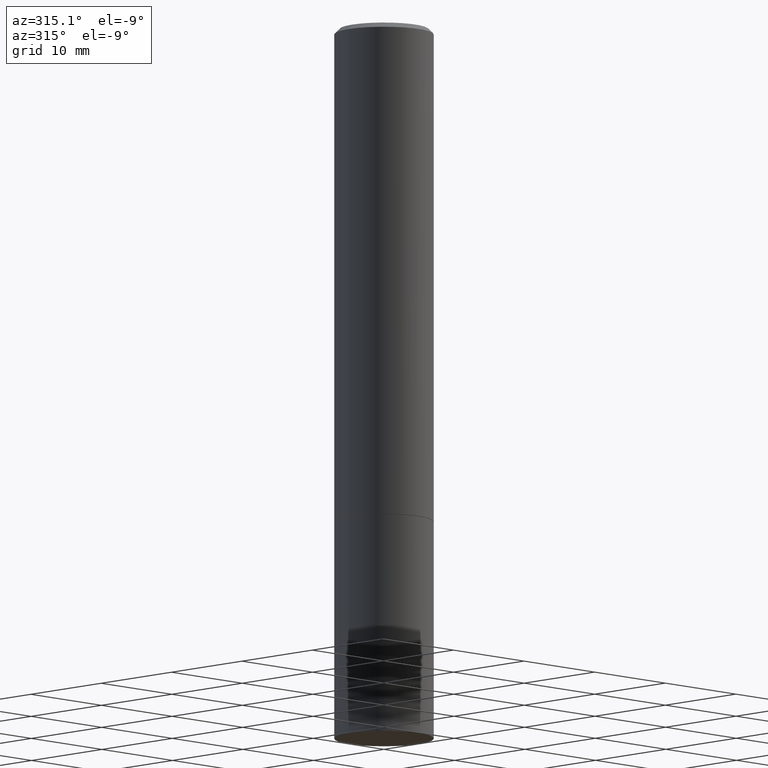
[diagram: clean part render]
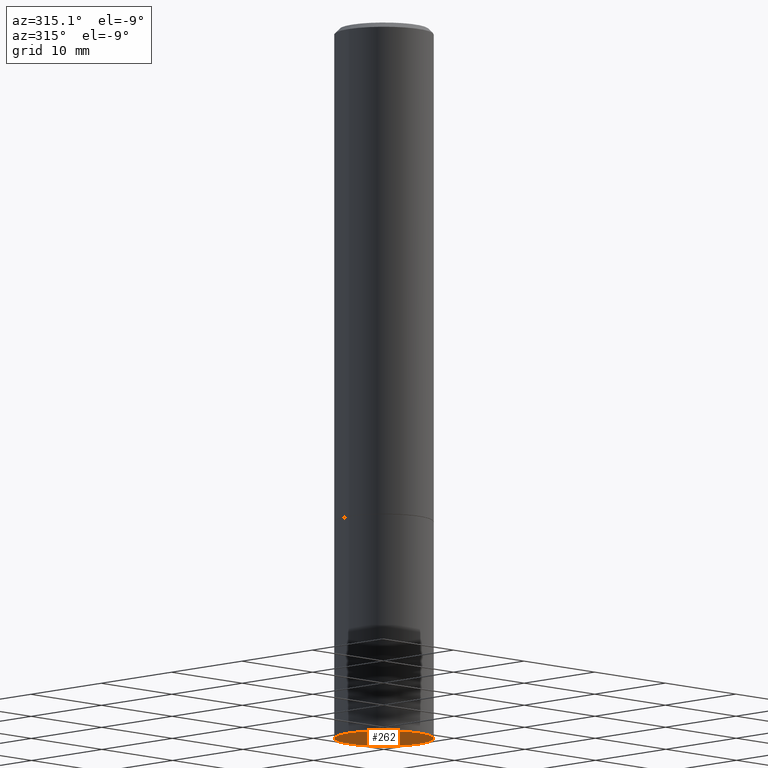
[diagram: same view with one face highlighted and labeled with its STEP entity id]
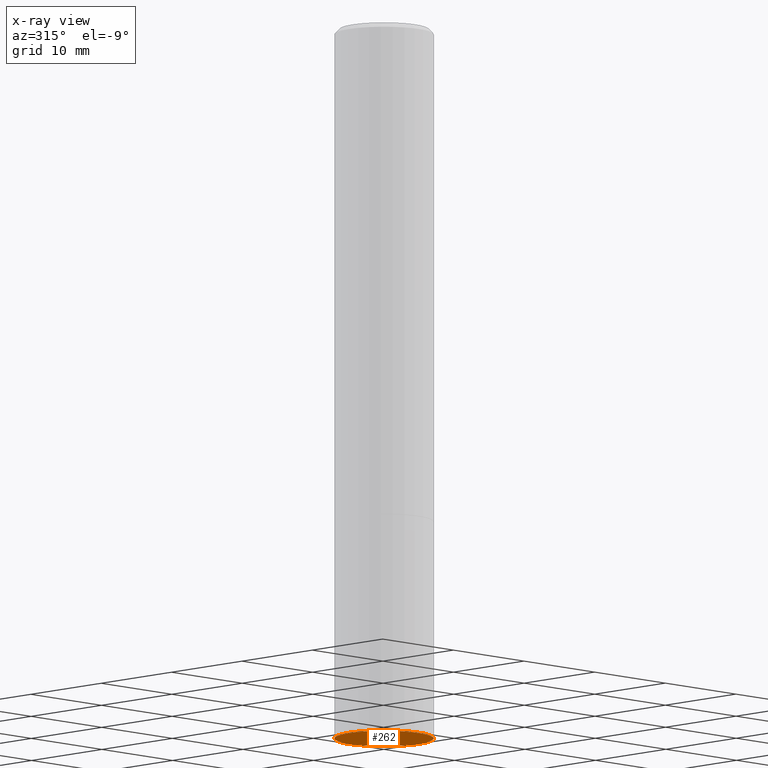
[diagram: x-ray of the same camera — body ghosted, the highlighted face saturated]
A machine part, auxiliary view. The second image highlights one B-rep face of the part: STEP entity #262.
The next image is the same camera in x-ray: the body ghosted, the highlighted face saturated — about 0% of this face is hidden behind the body in this view.
In plain terms, the highlighted planar face has unit normal (0, -0, -1).
Its self-contained STEP definition (entity closure, byte-faithful):
#8 = ORIENTED_EDGE ( 'NONE', *, *, #186, .F. ) ;
#31 = CIRCLE ( 'NONE', #72, 0.1968500000000000250 ) ;
#36 = AXIS2_PLACEMENT_3D ( 'NONE', #268, #100, #102 ) ;
#40 = EDGE_CURVE ( 'NONE', #165, #230, #191, .T. ) ;
#43 = PLANE ( 'NONE',  #79 ) ;
#69 = CARTESIAN_POINT ( 'NONE',  ( -0.1968500000000000250, -6.986263633954999297E-15, -2.834600000000000009 ) ) ;
#72 = AXIS2_PLACEMENT_3D ( 'NONE', #345, #175, #123 ) ;
#79 = AXIS2_PLACEMENT_3D ( 'NONE', #350, #104, #330 ) ;
#100 = DIRECTION ( 'NONE',  ( -2.445468806185136597E-29, 3.491481338843145583E-15, 1.000000000000000000 ) ) ;
#102 = DIRECTION ( 'NONE',  ( 1.000000000000000000, -6.982962677686267499E-15, 0.000000000000000000 ) ) ;
#104 = DIRECTION ( 'NONE',  ( 2.438088387897960049E-29, -3.491481338843145188E-15, -1.000000000000000000 ) ) ;
#123 = DIRECTION ( 'NONE',  ( 1.000000000000000000, -6.982962677686267499E-15, 0.000000000000000000 ) ) ;
#144 = ORIENTED_EDGE ( 'NONE', *, *, #40, .F. ) ;
#165 = VERTEX_POINT ( 'NONE', #69 ) ;
#175 = DIRECTION ( 'NONE',  ( -2.445468806185136597E-29, 3.491481338843145583E-15, 1.000000000000000000 ) ) ;
#182 = FACE_OUTER_BOUND ( 'NONE', #294, .T. ) ;
#186 = EDGE_CURVE ( 'NONE', #230, #165, #31, .T. ) ;
#191 = CIRCLE ( 'NONE', #36, 0.1968500000000000250 ) ;
#216 = CARTESIAN_POINT ( 'NONE',  ( 0.1968500000000000250, -1.127154920618732249E-14, -2.834600000000000009 ) ) ;
#230 = VERTEX_POINT ( 'NONE', #216 ) ;
#262 = ADVANCED_FACE ( 'NONE', ( #182 ), #43, .T. ) ;
#268 = CARTESIAN_POINT ( 'NONE',  ( 6.931925878012387517E-29, -9.896953003084780885E-15, -2.834600000000000009 ) ) ;
#294 = EDGE_LOOP ( 'NONE', ( #8, #144 ) ) ;
#330 = DIRECTION ( 'NONE',  ( -1.000000000000000000, 6.982962677686265922E-15, -4.876176775795935793E-29 ) ) ;
#345 = CARTESIAN_POINT ( 'NONE',  ( 6.931925878012387517E-29, -9.896953003084780885E-15, -2.834600000000000009 ) ) ;
#350 = CARTESIAN_POINT ( 'NONE',  ( 1.374596203102610831E-15, 0.1968499999999901162, -2.834600000000000453 ) ) ;